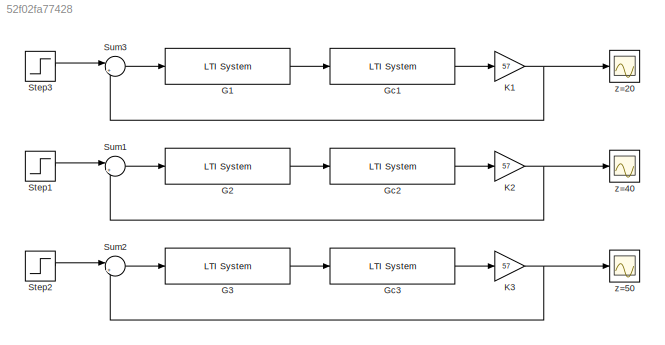
MODEL slx_52f02fa77428
KIND model
CONFIG AbsTol = auto
CONFIG EnableMultiTasking = off
CONFIG FixedStep = auto
CONFIG MaxStep = auto
CONFIG MinStep = auto
CONFIG RelTol = 1e-3
CONFIG SampleTimeConstraint = Unconstrained
CONFIG SolverName = VariableStepAuto
CONFIG StartTime = 0.0
CONFIG StopTime = 10.0
BLOCK [Reference] G1  REF=cstblocks/LTI System
  Ports = [1, 1]
  SourceBlock = cstblocks/LTI System
  SourceProductBaseCode = CT
  SourceType = LTI Block
BLOCK [Reference] G2  REF=cstblocks/LTI System
  Ports = [1, 1]
  SourceBlock = cstblocks/LTI System
  SourceProductBaseCode = CT
  SourceType = LTI Block
BLOCK [Reference] G3  REF=cstblocks/LTI System
  Ports = [1, 1]
  SourceBlock = cstblocks/LTI System
  SourceProductBaseCode = CT
  SourceType = LTI Block
BLOCK [Reference] Gc1  REF=cstblocks/LTI System
  Ports = [1, 1]
  SourceBlock = cstblocks/LTI System
  SourceProductBaseCode = CT
  SourceType = LTI Block
BLOCK [Reference] Gc2  REF=cstblocks/LTI System
  Ports = [1, 1]
  SourceBlock = cstblocks/LTI System
  SourceProductBaseCode = CT
  SourceType = LTI Block
BLOCK [Reference] Gc3  REF=cstblocks/LTI System
  Ports = [1, 1]
  SourceBlock = cstblocks/LTI System
  SourceProductBaseCode = CT
  SourceType = LTI Block
BLOCK [Gain] K1
  Gain = 57
BLOCK [Gain] K2
  Gain = 57
BLOCK [Gain] K3
  Gain = 57
BLOCK [Step] Step1
  SampleTime = 0
  Time = 0
BLOCK [Step] Step2
  SampleTime = 0
  Time = 0
BLOCK [Step] Step3
  SampleTime = 0
  Time = 0
BLOCK [Sum] Sum1
  Inputs = |+-
  Ports = [2, 1]
BLOCK [Sum] Sum2
  Inputs = |+-
  Ports = [2, 1]
BLOCK [Sum] Sum3
  Inputs = |+-
  Ports = [2, 1]
BLOCK [Scope] z=20
  Floating = off
  NumInputPorts = 1
  Ports = [1]
  ScopeSpecificationString = Simulink.scopes.TimeScopeBlockCfg('CurrentConfiguration', extmgr.ConfigurationSet(extmgr.Configuration('Core','General UI',true),extmgr.Configuration('Core','Source UI',true),extmgr.Configuration('Sources','WiredSimulink',true,'DataLoggingVariableName','ScopeData2'),extmgr.Configuration('Visuals','Time Domain',true,'SerializedDisplays',{struct('MinYLimReal','0.75745','MaxYLimReal','1.06573','YLabe...<+1407ch>
BLOCK [Scope] z=40
  Floating = off
  NumInputPorts = 1
  Ports = [1]
  ScopeSpecificationString = Simulink.scopes.TimeScopeBlockCfg('CurrentConfiguration', extmgr.ConfigurationSet(extmgr.Configuration('Core','General UI',true),extmgr.Configuration('Core','Source UI',true),extmgr.Configuration('Sources','WiredSimulink',true),extmgr.Configuration('Visuals','Time Domain',true,'SerializedDisplays',{struct('MinYLimReal','0.90598','MaxYLimReal','1.06502','YLabelReal','','MinYLimMag','0.90598','MaxYL...<+1339ch>
BLOCK [Scope] z=50
  Floating = off
  NumInputPorts = 1
  Ports = [1]
  ScopeSpecificationString = Simulink.scopes.TimeScopeBlockCfg('CurrentConfiguration', extmgr.ConfigurationSet(extmgr.Configuration('Core','General UI',true),extmgr.Configuration('Core','Source UI',true),extmgr.Configuration('Sources','WiredSimulink',true,'DataLoggingVariableName','ScopeData1'),extmgr.Configuration('Visuals','Time Domain',true,'SerializedDisplays',{struct('MinYLimReal','0.82756','MaxYLimReal','1.18764','YLabe...<+1403ch>
LINE G1:1 -> Gc1:1
LINE G2:1 -> Gc2:1
LINE G3:1 -> Gc3:1
LINE Gc1:1 -> K1:1
LINE Gc2:1 -> K2:1
LINE Gc3:1 -> K3:1
NET K1:1 -> Sum3:2, z=20:1
NET K2:1 -> Sum1:2, z=40:1
NET K3:1 -> Sum2:2, z=50:1
LINE Step1:1 -> Sum1:1
LINE Step2:1 -> Sum2:1
LINE Step3:1 -> Sum3:1
LINE Sum1:1 -> G2:1
LINE Sum2:1 -> G3:1
LINE Sum3:1 -> G1:1
note: NET lines group one-source signal fan-out (src -> all destinations, sorted); 1:1 wires keep LINE
